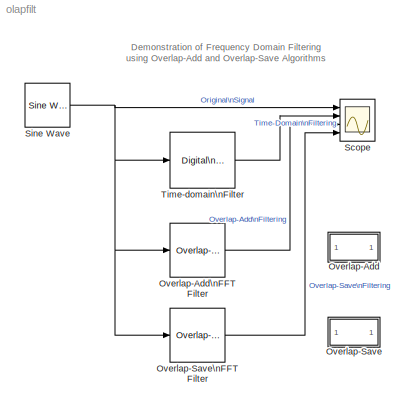
MODEL olapfilt
KIND model
CONFIG AbsTol = 1e-6
CONFIG FixedStep = auto
CONFIG MaxStep = auto
CONFIG MinStep = auto
CONFIG RelTol = 1e-3
CONFIG Solver = FixedStepDiscrete
CONFIG SolverMode = SingleTasking
CONFIG StartTime = 0.0
CONFIG StopTime = 0.05
BLOCK [SubSystem] Overlap-Add
  MaskDisplay = disp('Info')
  MaskIconFrame = on
  MaskIconOpaque = on
  MaskIconRotate = none
  MaskIconUnits = autoscale
  Ports = []
  RTWFcnNameOpts = Auto
  RTWFileNameOpts = Auto
  RTWSystemCode = Auto
  ShowPortLabels = on
  TreatAsAtomicUnit = off
BLOCK [Reference] Overlap-Add\nFFT Filter  REF=dsparch4/Overlap-Add\nFFT Filter
  Nfft = 64
  Ports = [1, 1]
  SourceBlock = dsparch4/Overlap-Add\nFFT Filter
  SourceType = Overlap-Add FFT Filter
  h = fir1(20,0.2)
  output_complexity = Real
BLOCK [SubSystem] Overlap-Save
  MaskDisplay = disp('Info')
  MaskIconFrame = on
  MaskIconOpaque = on
  MaskIconRotate = none
  MaskIconUnits = autoscale
  Ports = []
  RTWFcnNameOpts = Auto
  RTWFileNameOpts = Auto
  RTWSystemCode = Auto
  ShowPortLabels = on
  TreatAsAtomicUnit = off
BLOCK [Reference] Overlap-Save\nFFT Filter  REF=dsparch4/Overlap-Save\nFFT Filter
  Ports = [1, 1]
  SourceBlock = dsparch4/Overlap-Save\nFFT Filter
  SourceType = Overlap-Save FFT Filter
  h = fir1(20,0.2)
  nfft_in = 64
  output_complexity = Real
BLOCK [Scope] Scope
  DataFormat = Array
  Decimation = 1
  Floating = off
  Grid = on
  LimitDataPoints = on
  MaxDataPoints = 5000
  NumInputPorts = 4
  Ports = [4]
  SampleInput = off
  SampleTime = 0
  SaveName = ScopeData
  SaveToWorkspace = off
  TickLabels = OneTimeTick
  TimeRange = 0.05
  Visible = on
  YMax = 1~1~1~1
  YMin = -1~-1~-1~-1
  ZoomMode = xonly
BLOCK [Reference] Sine Wave  REF=dspsrcs4/Sine Wave
  Amplitude = 1
  CompMethod = Trigonometric fcn
  Frequency = 500
  OutComplex = Real
  Phase = 0
  Ports = [0, 1]
  ResetState = Restart at time zero
  SampleMode = Discrete
  SampleTime = 1/5000
  SamplesPerFrame = 1
  SourceBlock = dspsrcs4/Sine Wave
  SourceType = Sine Wave
  TableSize = Speed
  dType = Double
BLOCK [Reference] Time-domain\nFilter  REF=dsparch4/Digital\nFilter Design
  Ports = [1, 1]
  SourceBlock = dsparch4/Digital\nFilter Design
  SourceType = Digital Filter Design
  UserData = DataTag0
  UserDataPersistent = on
ANNOTATION (root): Demonstration of Frequency Domain Filtering\nusing Overlap-Add and Overlap-Save Algorithms
ANNOTATION Overlap-Add: Overlap-Add Algorithm\n\nThis algorithm filters the input signal. The input is\ndivided into non-overlapping blocks which are linearly\nconvolved with the FIR filter coefficients.\n\nThe linear convolution of each block is computed\nby multiplying the DFTs of the block and the filter\ncoefficients, and computing the inverse DFT of the product.\n\nFor filter length M and FFT size N, the last M-1 sa...<+305ch>
ANNOTATION Overlap-Save: For filter length M and FFT size N, the first M-1 points\nof the circular convolution are invalid and discarded.\nThe remaining (N-M+1) points which are equivalent to\nthe true convolution are \"unrolled\" as output by the\nUnbuffer block.
ANNOTATION Overlap-Save: Overlap Save Algorithm
ANNOTATION Overlap-Save: Reference: Oppenheim and Schafer, Discrete-Time Signal\nProcessing, Prentice-Hall, Englewood Cliffs, NJ, 1989,\npp. 558 - 560.
ANNOTATION Overlap-Save: The circular convolution of each block is computed\nby multiplying the DFTs of the block and the filter\ncoefficients, and computing the inverse DFT of the product.
ANNOTATION Overlap-Save: This algorithm filters the input signal. The input\nis divided into overlapping blocks which are circularly\nconvolved with the FIR filter coefficients.
LINE Overlap-Add\nFFT Filter:1 -> Scope:3
LINE Overlap-Save\nFFT Filter:1 -> Scope:4
NET Sine Wave:1 -> Overlap-Add\nFFT Filter:1, Overlap-Save\nFFT Filter:1, Scope:1, Time-domain\nFilter:1
LINE Time-domain\nFilter:1 -> Scope:2
note: NET lines group one-source signal fan-out (src -> all destinations, sorted); 1:1 wires keep LINE
